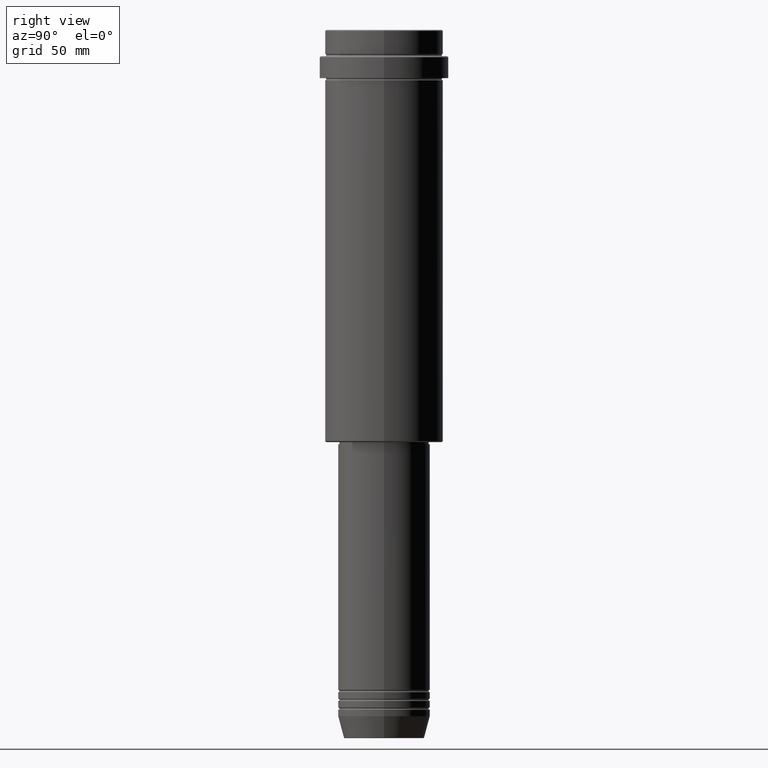
[diagram: clean part render]
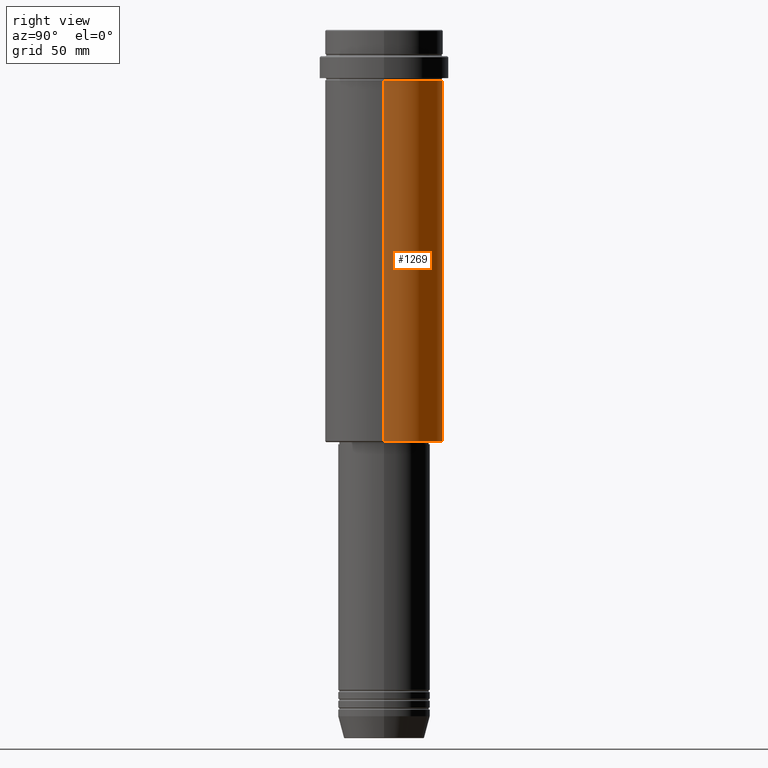
[diagram: same view with one face highlighted and labeled with its STEP entity id]
A machine part, right view. The second image highlights one B-rep face of the part: STEP entity #1269.
In plain terms, the highlighted cylindrical surface (partial cylindrical patch) has radius 27 mm, axis along (-0, -0, 1).
Its self-contained STEP definition (entity closure, byte-faithful):
#19 = CIRCLE ( 'NONE', #1273, 27.00000000000000355 ) ;
#36 = DIRECTION ( 'NONE',  ( 1.000000000000000000, 0.000000000000000000, 0.000000000000000000 ) ) ;
#73 = VECTOR ( 'NONE', #194, 1000.000000000000000 ) ;
#123 = CARTESIAN_POINT ( 'NONE',  ( -27.00000000000000355, 3.306546357697854128E-15, -187.4999999999999432 ) ) ;
#148 = CARTESIAN_POINT ( 'NONE',  ( 0.000000000000000000, 0.000000000000000000, 0.000000000000000000 ) ) ;
#167 = CARTESIAN_POINT ( 'NONE',  ( 0.000000000000000000, 0.000000000000000000, -23.00000000000001421 ) ) ;
#168 = CARTESIAN_POINT ( 'NONE',  ( 27.00000000000000355, 0.000000000000000000, -187.4999999999999432 ) ) ;
#194 = DIRECTION ( 'NONE',  ( -0.000000000000000000, -0.000000000000000000, 1.000000000000000000 ) ) ;
#220 = AXIS2_PLACEMENT_3D ( 'NONE', #1070, #1151, #283 ) ;
#283 = DIRECTION ( 'NONE',  ( -1.000000000000000000, 0.000000000000000000, 0.000000000000000000 ) ) ;
#298 = EDGE_CURVE ( 'NONE', #1391, #1316, #451, .T. ) ;
#309 = VERTEX_POINT ( 'NONE', #823 ) ;
#382 = ORIENTED_EDGE ( 'NONE', *, *, #975, .T. ) ;
#441 = CARTESIAN_POINT ( 'NONE',  ( -27.00000000000000355, 3.306546357697854128E-15, 0.000000000000000000 ) ) ;
#450 = ORIENTED_EDGE ( 'NONE', *, *, #625, .F. ) ;
#451 = CIRCLE ( 'NONE', #220, 27.00000000000000355 ) ;
#536 = ORIENTED_EDGE ( 'NONE', *, *, #298, .T. ) ;
#582 = FACE_OUTER_BOUND ( 'NONE', #698, .T. ) ;
#624 = AXIS2_PLACEMENT_3D ( 'NONE', #148, #1213, #669 ) ;
#625 = EDGE_CURVE ( 'NONE', #309, #1191, #19, .T. ) ;
#669 = DIRECTION ( 'NONE',  ( 1.000000000000000000, 0.000000000000000000, 0.000000000000000000 ) ) ;
#698 = EDGE_LOOP ( 'NONE', ( #536, #382, #450, #1198 ) ) ;
#741 = LINE ( 'NONE', #441, #1181 ) ;
#766 = DIRECTION ( 'NONE',  ( -0.000000000000000000, -0.000000000000000000, 1.000000000000000000 ) ) ;
#784 = CYLINDRICAL_SURFACE ( 'NONE', #624, 27.00000000000000355 ) ;
#795 = EDGE_CURVE ( 'NONE', #1391, #309, #1260, .T. ) ;
#823 = CARTESIAN_POINT ( 'NONE',  ( 27.00000000000000355, 0.000000000000000000, -23.00000000000001421 ) ) ;
#842 = CARTESIAN_POINT ( 'NONE',  ( 27.00000000000000355, 0.000000000000000000, 0.000000000000000000 ) ) ;
#975 = EDGE_CURVE ( 'NONE', #1316, #1191, #741, .T. ) ;
#1004 = CARTESIAN_POINT ( 'NONE',  ( -27.00000000000000355, 3.306546357697854128E-15, -23.00000000000001421 ) ) ;
#1070 = CARTESIAN_POINT ( 'NONE',  ( 0.000000000000000000, 0.000000000000000000, -187.4999999999999432 ) ) ;
#1134 = DIRECTION ( 'NONE',  ( -0.000000000000000000, -0.000000000000000000, 1.000000000000000000 ) ) ;
#1151 = DIRECTION ( 'NONE',  ( -0.000000000000000000, -0.000000000000000000, 1.000000000000000000 ) ) ;
#1181 = VECTOR ( 'NONE', #766, 1000.000000000000000 ) ;
#1191 = VERTEX_POINT ( 'NONE', #1004 ) ;
#1198 = ORIENTED_EDGE ( 'NONE', *, *, #795, .F. ) ;
#1213 = DIRECTION ( 'NONE',  ( -0.000000000000000000, -0.000000000000000000, 1.000000000000000000 ) ) ;
#1260 = LINE ( 'NONE', #842, #73 ) ;
#1269 = ADVANCED_FACE ( 'NONE', ( #582 ), #784, .T. ) ;
#1273 = AXIS2_PLACEMENT_3D ( 'NONE', #167, #1134, #36 ) ;
#1316 = VERTEX_POINT ( 'NONE', #123 ) ;
#1391 = VERTEX_POINT ( 'NONE', #168 ) ;